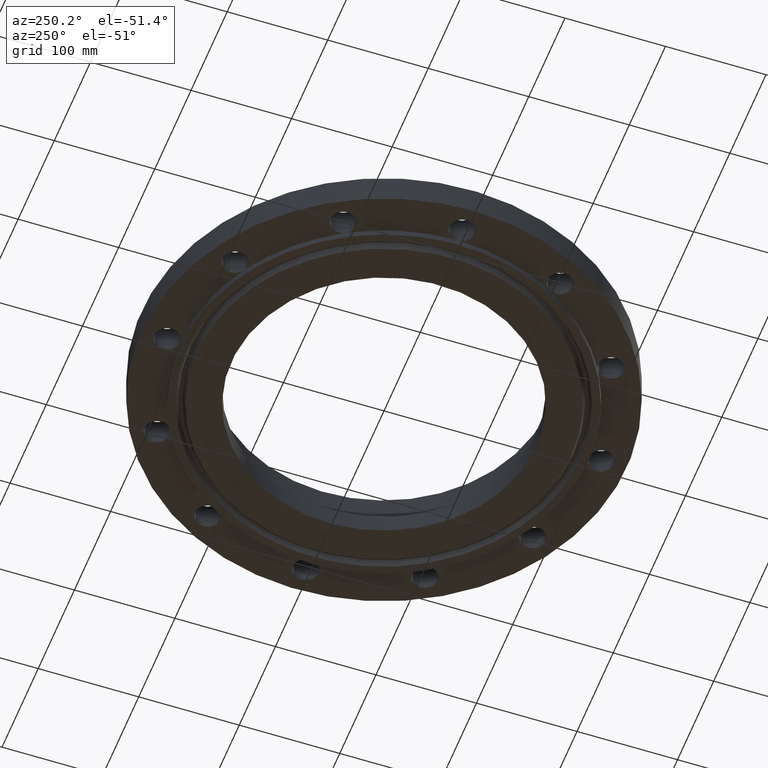
[diagram: clean part render]
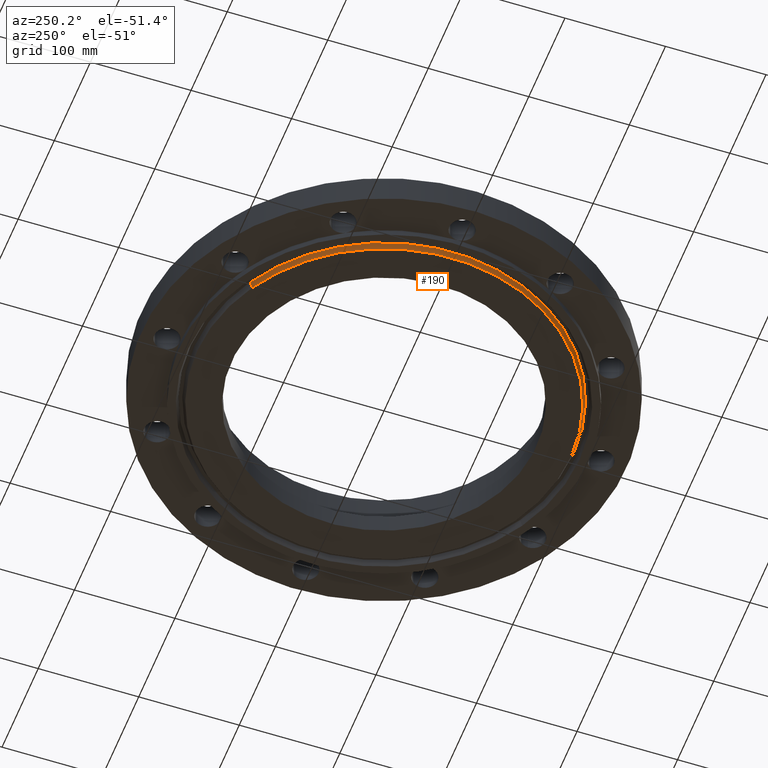
[diagram: same view with one face highlighted and labeled with its STEP entity id]
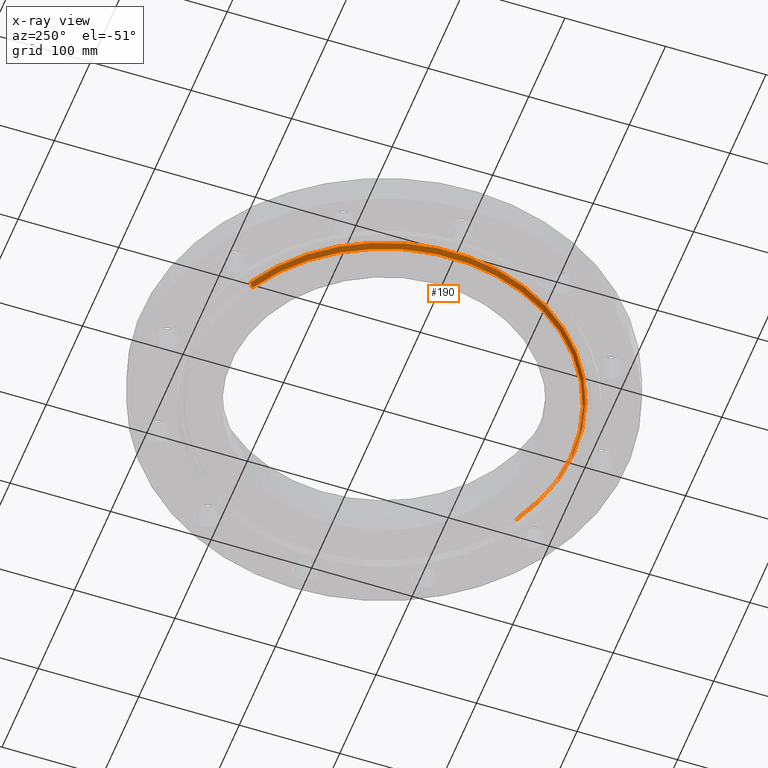
[diagram: x-ray of the same camera — body ghosted, the highlighted face saturated]
A machine part, auxiliary view. The second image highlights one B-rep face of the part: STEP entity #190.
The next image is the same camera in x-ray: the body ghosted, the highlighted face saturated — about 0% of this face is hidden behind the body in this view.
In plain terms, the highlighted conical surface has half-angle 23 deg.
Its self-contained STEP definition (entity closure, byte-faithful):
#136=AXIS2_PLACEMENT_3D('Circle Axis2P3D',#134,#135,$) ;
#151=AXIS2_PLACEMENT_3D('Cone Axis2P3D',#148,#149,#150) ;
#181=AXIS2_PLACEMENT_3D('Circle Axis2P3D',#179,#180,$) ;
#129=CARTESIAN_POINT('Vertex',(-3.5132902751,6.43103471138,-0.250000000001)) ;
#131=CARTESIAN_POINT('Vertex',(3.5132902751,-6.43103471138,-0.250000000001)) ;
#134=CARTESIAN_POINT('Axis2P3D Location',(0.,1.1189649382E-015,-0.250000000001)) ;
#148=CARTESIAN_POINT('Axis2P3D Location',(0.,0.,-0.310000000001)) ;
#153=CARTESIAN_POINT('Line Origine',(-3.53679096019,6.47405242688,-0.134519826118)) ;
#157=CARTESIAN_POINT('Vertex',(-3.56029164527,6.51707014239,-0.0190396522348)) ;
#164=CARTESIAN_POINT('Vertex',(3.56029164527,-6.51707014239,-0.0190396522348)) ;
#167=CARTESIAN_POINT('Line Origine',(3.53679096019,-6.47405242688,-0.134519826118)) ;
#179=CARTESIAN_POINT('Axis2P3D Location',(0.,0.,-0.0190396522348)) ;
#135=DIRECTION('Axis2P3D Direction',(0.,0.,-0.0393700787402)) ;
#149=DIRECTION('Axis2P3D Direction',(0.,0.,0.0393700787402)) ;
#150=DIRECTION('Axis2P3D XDirection',(-0.0188750212049,0.0345504945626,0.)) ;
#154=DIRECTION('Vector Direction',(-0.00737505833565,0.0134999537303,0.0362403485611)) ;
#168=DIRECTION('Vector Direction',(0.00737505833565,-0.0134999537303,0.0362403485611)) ;
#180=DIRECTION('Axis2P3D Direction',(0.,0.,0.0393700787402)) ;
#155=VECTOR('Line Direction',#154,0.0393700787402) ;
#169=VECTOR('Line Direction',#168,0.0393700787402) ;
#185=ORIENTED_EDGE('',*,*,#171,.F.) ;
#186=ORIENTED_EDGE('',*,*,#183,.F.) ;
#187=ORIENTED_EDGE('',*,*,#159,.T.) ;
#188=ORIENTED_EDGE('',*,*,#138,.F.) ;
#190=ADVANCED_FACE('PartBody',(#189),#152,.T.) ;
#137=CIRCLE('generated circle',#136,7.32812500003) ;
#182=CIRCLE('generated circle',#181,7.4261618512) ;
#152=CONICAL_SURFACE('Cone',#151,7.30265651106,0.401425727959) ;
#138=EDGE_CURVE('',#132,#130,#137,.T.) ;
#159=EDGE_CURVE('',#158,#130,#156,.F.) ;
#171=EDGE_CURVE('',#165,#132,#170,.F.) ;
#183=EDGE_CURVE('',#158,#165,#182,.T.) ;
#184=EDGE_LOOP('',(#185,#186,#187,#188)) ;
#189=FACE_OUTER_BOUND('',#184,.T.) ;
#156=LINE('Line',#153,#155) ;
#170=LINE('Line',#167,#169) ;
#130=VERTEX_POINT('',#129) ;
#132=VERTEX_POINT('',#131) ;
#158=VERTEX_POINT('',#157) ;
#165=VERTEX_POINT('',#164) ;